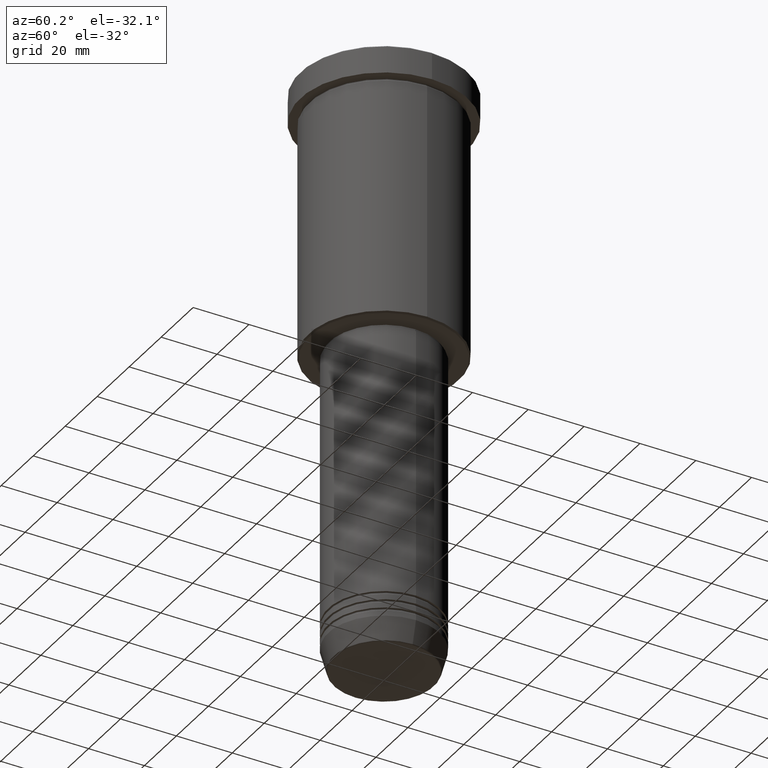
[diagram: clean part render]
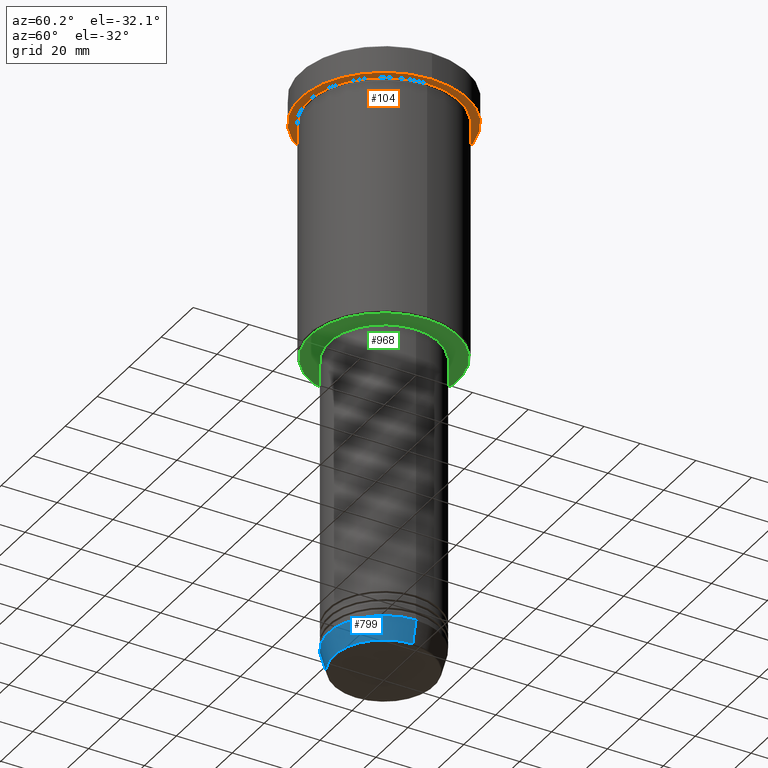
[diagram: same view with three faces highlighted in distinct colors, each labeled with its STEP entity id]
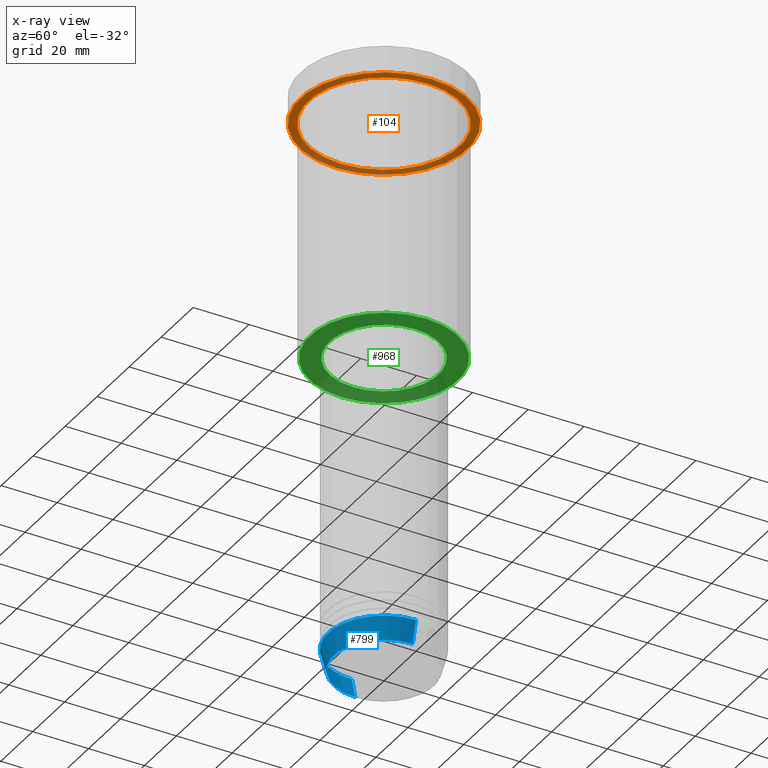
[diagram: x-ray of the same camera — body ghosted, the three highlighted faces saturated]
A machine part, auxiliary view with three faces highlighted in distinct colors.
The next image is the same camera in x-ray (body ghosted, the three faces saturated) — at least one of them is partly hidden behind the body in this view.
Their STEP definitions:

[orange] entity #104 — the highlighted planar face has unit normal (0, 0, -1).
#21 = DIRECTION ( 'NONE',  ( -0.000000000000000000, -0.000000000000000000, 1.000000000000000000 ) ) ;
#46 = EDGE_CURVE ( 'NONE', #393, #1033, #573, .T. ) ;
#104 = ADVANCED_FACE ( 'NONE', ( #246, #607 ), #402, .T. ) ;
#115 = VERTEX_POINT ( 'NONE', #500 ) ;
#135 = ORIENTED_EDGE ( 'NONE', *, *, #1160, .T. ) ;
#138 = DIRECTION ( 'NONE',  ( 0.000000000000000000, 0.000000000000000000, -1.000000000000000000 ) ) ;
#145 = AXIS2_PLACEMENT_3D ( 'NONE', #164, #612, #882 ) ;
#164 = CARTESIAN_POINT ( 'NONE',  ( 0.000000000000000000, 0.000000000000000000, -9.999999999999992895 ) ) ;
#186 = CARTESIAN_POINT ( 'NONE',  ( 0.000000000000000000, 0.000000000000000000, -9.999999999999992895 ) ) ;
#211 = CARTESIAN_POINT ( 'NONE',  ( -30.00000000000000000, 3.673940397442059178E-15, -9.999999999999992895 ) ) ;
#246 = FACE_BOUND ( 'NONE', #713, .T. ) ;
#276 = CARTESIAN_POINT ( 'NONE',  ( 0.000000000000000000, 0.000000000000000000, -9.999999999999992895 ) ) ;
#351 = EDGE_LOOP ( 'NONE', ( #436, #354 ) ) ;
#354 = ORIENTED_EDGE ( 'NONE', *, *, #810, .F. ) ;
#393 = VERTEX_POINT ( 'NONE', #559 ) ;
#402 = PLANE ( 'NONE',  #1071 ) ;
#434 = CARTESIAN_POINT ( 'NONE',  ( -27.00000000000000355, 0.000000000000000000, -9.999999999999992895 ) ) ;
#436 = ORIENTED_EDGE ( 'NONE', *, *, #46, .F. ) ;
#458 = DIRECTION ( 'NONE',  ( -1.000000000000000000, 0.000000000000000000, 0.000000000000000000 ) ) ;
#500 = CARTESIAN_POINT ( 'NONE',  ( 27.00000000000000355, 3.306546357697854128E-15, -9.999999999999992895 ) ) ;
#552 = DIRECTION ( 'NONE',  ( -0.000000000000000000, -0.000000000000000000, 1.000000000000000000 ) ) ;
#559 = CARTESIAN_POINT ( 'NONE',  ( 30.00000000000000000, 0.000000000000000000, -9.999999999999992895 ) ) ;
#573 = CIRCLE ( 'NONE', #728, 30.00000000000000000 ) ;
#607 = FACE_OUTER_BOUND ( 'NONE', #351, .T. ) ;
#612 = DIRECTION ( 'NONE',  ( -0.000000000000000000, -0.000000000000000000, 1.000000000000000000 ) ) ;
#629 = ORIENTED_EDGE ( 'NONE', *, *, #903, .T. ) ;
#665 = DIRECTION ( 'NONE',  ( 1.000000000000000000, 0.000000000000000000, 0.000000000000000000 ) ) ;
#702 = VERTEX_POINT ( 'NONE', #434 ) ;
#713 = EDGE_LOOP ( 'NONE', ( #135, #629 ) ) ;
#728 = AXIS2_PLACEMENT_3D ( 'NONE', #925, #21, #665 ) ;
#769 = CARTESIAN_POINT ( 'NONE',  ( 0.000000000000000000, 30.00000000000000000, -9.999999999999992895 ) ) ;
#810 = EDGE_CURVE ( 'NONE', #1033, #393, #888, .T. ) ;
#852 = AXIS2_PLACEMENT_3D ( 'NONE', #186, #552, #928 ) ;
#872 = CIRCLE ( 'NONE', #1113, 27.00000000000000355 ) ;
#882 = DIRECTION ( 'NONE',  ( -1.000000000000000000, 0.000000000000000000, 0.000000000000000000 ) ) ;
#888 = CIRCLE ( 'NONE', #852, 30.00000000000000000 ) ;
#903 = EDGE_CURVE ( 'NONE', #115, #702, #872, .T. ) ;
#911 = DIRECTION ( 'NONE',  ( -0.000000000000000000, -0.000000000000000000, 1.000000000000000000 ) ) ;
#925 = CARTESIAN_POINT ( 'NONE',  ( 0.000000000000000000, 0.000000000000000000, -9.999999999999992895 ) ) ;
#928 = DIRECTION ( 'NONE',  ( 1.000000000000000000, 0.000000000000000000, 0.000000000000000000 ) ) ;
#940 = CIRCLE ( 'NONE', #145, 27.00000000000000355 ) ;
#966 = DIRECTION ( 'NONE',  ( -1.000000000000000000, 0.000000000000000000, -0.000000000000000000 ) ) ;
#1033 = VERTEX_POINT ( 'NONE', #211 ) ;
#1071 = AXIS2_PLACEMENT_3D ( 'NONE', #769, #138, #966 ) ;
#1113 = AXIS2_PLACEMENT_3D ( 'NONE', #276, #911, #458 ) ;
#1160 = EDGE_CURVE ( 'NONE', #702, #115, #940, .T. ) ;

[blue] entity #799 — the highlighted conical surface has half-angle 15 deg.
#23 = DIRECTION ( 'NONE',  ( -0.000000000000000000, -0.000000000000000000, 1.000000000000000000 ) ) ;
#32 = AXIS2_PLACEMENT_3D ( 'NONE', #249, #1177, #1063 ) ;
#52 = AXIS2_PLACEMENT_3D ( 'NONE', #173, #73, #440 ) ;
#73 = DIRECTION ( 'NONE',  ( -0.000000000000000000, -0.000000000000000000, 1.000000000000000000 ) ) ;
#166 = LINE ( 'NONE', #529, #584 ) ;
#173 = CARTESIAN_POINT ( 'NONE',  ( 0.000000000000000000, 0.000000000000000000, -203.0000000000000000 ) ) ;
#202 = FACE_OUTER_BOUND ( 'NONE', #914, .T. ) ;
#249 = CARTESIAN_POINT ( 'NONE',  ( 0.000000000000000000, 0.000000000000000000, -210.6294095225512706 ) ) ;
#262 = EDGE_CURVE ( 'NONE', #851, #856, #722, .T. ) ;
#266 = CARTESIAN_POINT ( 'NONE',  ( 20.00000000000000000, 0.000000000000000000, -203.0000000000000000 ) ) ;
#366 = VERTEX_POINT ( 'NONE', #1028 ) ;
#378 = VERTEX_POINT ( 'NONE', #664 ) ;
#379 = CARTESIAN_POINT ( 'NONE',  ( 20.00000000000000000, 0.000000000000000000, -203.0000000000000000 ) ) ;
#435 = DIRECTION ( 'NONE',  ( 0.2588190451025212391, 0.000000000000000000, 0.9659258262890680902 ) ) ;
#440 = DIRECTION ( 'NONE',  ( 1.000000000000000000, 0.000000000000000000, 0.000000000000000000 ) ) ;
#467 = CIRCLE ( 'NONE', #32, 17.95570587970605558 ) ;
#529 = CARTESIAN_POINT ( 'NONE',  ( -20.00000000000000000, 2.449293598294706513E-15, -203.0000000000000000 ) ) ;
#564 = AXIS2_PLACEMENT_3D ( 'NONE', #934, #23, #845 ) ;
#584 = VECTOR ( 'NONE', #894, 1000.000000000000114 ) ;
#633 = EDGE_CURVE ( 'NONE', #366, #856, #961, .T. ) ;
#635 = CARTESIAN_POINT ( 'NONE',  ( 17.95570587970605558, 0.000000000000000000, -210.6294095225512706 ) ) ;
#637 = VECTOR ( 'NONE', #435, 1000.000000000000114 ) ;
#650 = EDGE_CURVE ( 'NONE', #378, #851, #467, .T. ) ;
#661 = CONICAL_SURFACE ( 'NONE', #564, 20.00000000000000000, 0.2617993877991499629 ) ;
#664 = CARTESIAN_POINT ( 'NONE',  ( -17.95570587970605558, 2.324116685748020188E-15, -210.6294095225512706 ) ) ;
#722 = LINE ( 'NONE', #266, #637 ) ;
#756 = ORIENTED_EDGE ( 'NONE', *, *, #786, .F. ) ;
#786 = EDGE_CURVE ( 'NONE', #378, #366, #166, .T. ) ;
#799 = ADVANCED_FACE ( 'NONE', ( #202 ), #661, .T. ) ;
#815 = ORIENTED_EDGE ( 'NONE', *, *, #633, .F. ) ;
#845 = DIRECTION ( 'NONE',  ( 1.000000000000000000, 0.000000000000000000, 0.000000000000000000 ) ) ;
#851 = VERTEX_POINT ( 'NONE', #635 ) ;
#856 = VERTEX_POINT ( 'NONE', #379 ) ;
#894 = DIRECTION ( 'NONE',  ( -0.2588190451025212391, 3.169619151431771721E-17, 0.9659258262890680902 ) ) ;
#914 = EDGE_LOOP ( 'NONE', ( #756, #995, #1005, #815 ) ) ;
#934 = CARTESIAN_POINT ( 'NONE',  ( 0.000000000000000000, 0.000000000000000000, -203.0000000000000000 ) ) ;
#961 = CIRCLE ( 'NONE', #52, 20.00000000000000000 ) ;
#995 = ORIENTED_EDGE ( 'NONE', *, *, #650, .T. ) ;
#1005 = ORIENTED_EDGE ( 'NONE', *, *, #262, .T. ) ;
#1028 = CARTESIAN_POINT ( 'NONE',  ( -20.00000000000000000, 2.449293598294706513E-15, -203.0000000000000000 ) ) ;
#1063 = DIRECTION ( 'NONE',  ( 1.000000000000000000, 0.000000000000000000, 0.000000000000000000 ) ) ;
#1177 = DIRECTION ( 'NONE',  ( -0.000000000000000000, -0.000000000000000000, 1.000000000000000000 ) ) ;

[green] entity #968 — the highlighted planar face has unit normal (0, 0, -1).
#50 = CARTESIAN_POINT ( 'NONE',  ( 0.000000000000000000, 0.000000000000000000, -96.00000000000000000 ) ) ;
#109 = CARTESIAN_POINT ( 'NONE',  ( 0.000000000000000000, 27.00000000000000355, -96.00000000000000000 ) ) ;
#113 = DIRECTION ( 'NONE',  ( -1.000000000000000000, 0.000000000000000000, -0.000000000000000000 ) ) ;
#131 = DIRECTION ( 'NONE',  ( 1.000000000000000000, 0.000000000000000000, 0.000000000000000000 ) ) ;
#155 = CARTESIAN_POINT ( 'NONE',  ( 0.000000000000000000, 0.000000000000000000, -96.00000000000000000 ) ) ;
#168 = EDGE_CURVE ( 'NONE', #1122, #284, #674, .T. ) ;
#190 = FACE_OUTER_BOUND ( 'NONE', #906, .T. ) ;
#200 = AXIS2_PLACEMENT_3D ( 'NONE', #50, #690, #131 ) ;
#263 = CARTESIAN_POINT ( 'NONE',  ( 0.000000000000000000, 0.000000000000000000, -96.00000000000000000 ) ) ;
#284 = VERTEX_POINT ( 'NONE', #544 ) ;
#291 = CIRCLE ( 'NONE', #806, 19.50000000000000000 ) ;
#300 = ORIENTED_EDGE ( 'NONE', *, *, #168, .T. ) ;
#309 = EDGE_CURVE ( 'NONE', #284, #1122, #790, .T. ) ;
#338 = DIRECTION ( 'NONE',  ( 1.000000000000000000, 0.000000000000000000, 0.000000000000000000 ) ) ;
#391 = ORIENTED_EDGE ( 'NONE', *, *, #502, .T. ) ;
#443 = CARTESIAN_POINT ( 'NONE',  ( -26.49999999999991118, 3.275930187719164819E-15, -96.00000000000000000 ) ) ;
#451 = ORIENTED_EDGE ( 'NONE', *, *, #309, .T. ) ;
#454 = DIRECTION ( 'NONE',  ( 0.000000000000000000, 0.000000000000000000, -1.000000000000000000 ) ) ;
#456 = EDGE_LOOP ( 'NONE', ( #391, #902 ) ) ;
#502 = EDGE_CURVE ( 'NONE', #825, #915, #813, .T. ) ;
#544 = CARTESIAN_POINT ( 'NONE',  ( 26.49999999999991118, 0.000000000000000000, -96.00000000000000000 ) ) ;
#558 = FACE_BOUND ( 'NONE', #456, .T. ) ;
#566 = DIRECTION ( 'NONE',  ( 0.000000000000000000, 0.000000000000000000, -1.000000000000000000 ) ) ;
#623 = DIRECTION ( 'NONE',  ( -0.000000000000000000, -0.000000000000000000, 1.000000000000000000 ) ) ;
#674 = CIRCLE ( 'NONE', #979, 26.49999999999991118 ) ;
#690 = DIRECTION ( 'NONE',  ( -0.000000000000000000, -0.000000000000000000, 1.000000000000000000 ) ) ;
#747 = CARTESIAN_POINT ( 'NONE',  ( 19.50000000000000000, 0.000000000000000000, -96.00000000000000000 ) ) ;
#777 = DIRECTION ( 'NONE',  ( 0.000000000000000000, 0.000000000000000000, -1.000000000000000000 ) ) ;
#790 = CIRCLE ( 'NONE', #998, 26.49999999999991118 ) ;
#806 = AXIS2_PLACEMENT_3D ( 'NONE', #969, #623, #338 ) ;
#813 = CIRCLE ( 'NONE', #200, 19.50000000000000000 ) ;
#819 = DIRECTION ( 'NONE',  ( -1.000000000000000000, 0.000000000000000000, 0.000000000000000000 ) ) ;
#825 = VERTEX_POINT ( 'NONE', #747 ) ;
#885 = DIRECTION ( 'NONE',  ( -1.000000000000000000, 0.000000000000000000, 0.000000000000000000 ) ) ;
#902 = ORIENTED_EDGE ( 'NONE', *, *, #1181, .T. ) ;
#906 = EDGE_LOOP ( 'NONE', ( #451, #300 ) ) ;
#915 = VERTEX_POINT ( 'NONE', #1010 ) ;
#921 = PLANE ( 'NONE',  #1150 ) ;
#968 = ADVANCED_FACE ( 'NONE', ( #190, #558 ), #921, .T. ) ;
#969 = CARTESIAN_POINT ( 'NONE',  ( 0.000000000000000000, 0.000000000000000000, -96.00000000000000000 ) ) ;
#979 = AXIS2_PLACEMENT_3D ( 'NONE', #155, #777, #885 ) ;
#998 = AXIS2_PLACEMENT_3D ( 'NONE', #263, #454, #819 ) ;
#1010 = CARTESIAN_POINT ( 'NONE',  ( -19.50000000000000000, 2.388061258337338939E-15, -96.00000000000000000 ) ) ;
#1122 = VERTEX_POINT ( 'NONE', #443 ) ;
#1150 = AXIS2_PLACEMENT_3D ( 'NONE', #109, #566, #113 ) ;
#1181 = EDGE_CURVE ( 'NONE', #915, #825, #291, .T. ) ;